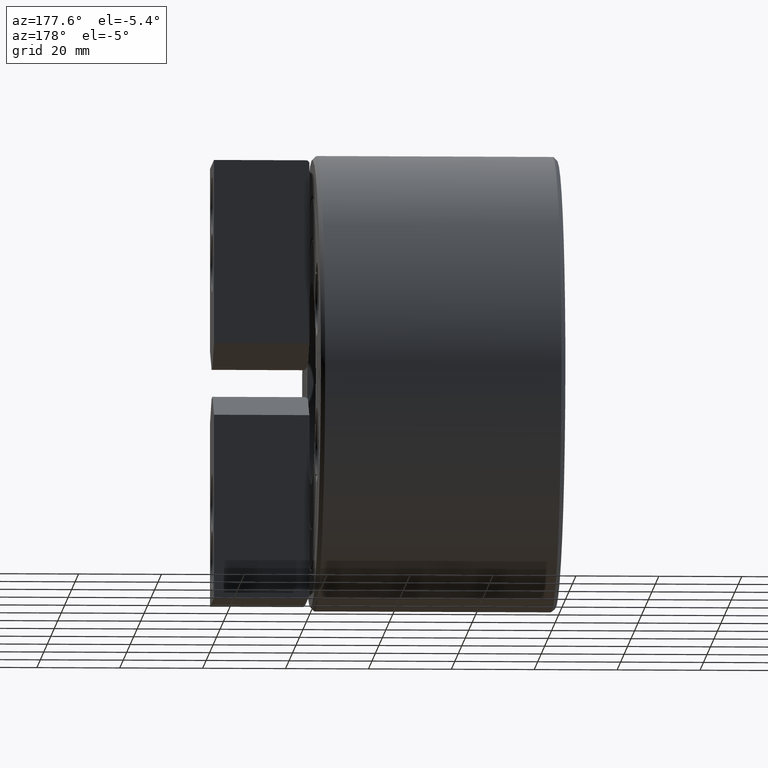
[diagram: clean part render]
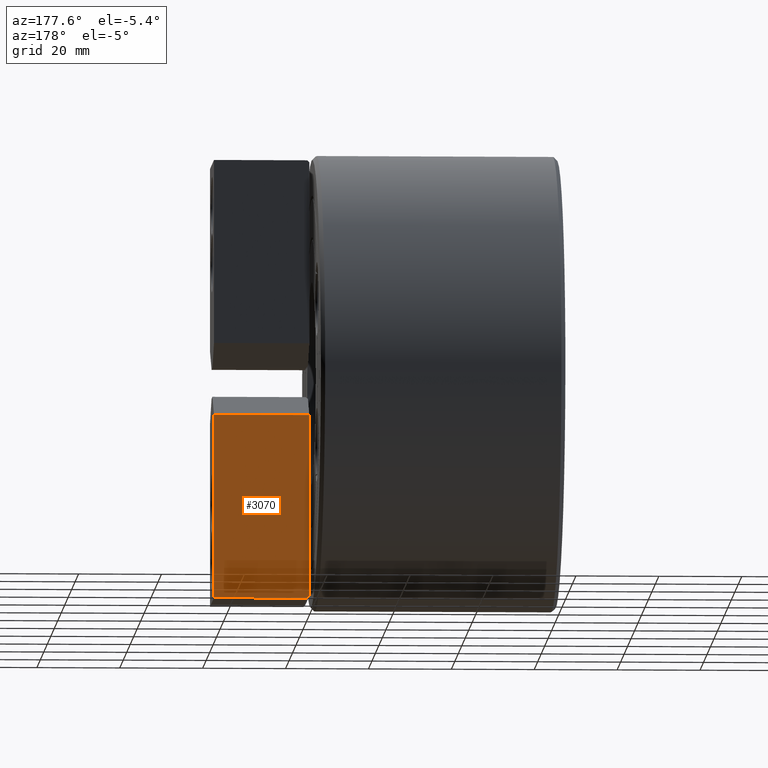
[diagram: same view with one face highlighted and labeled with its STEP entity id]
A machine part, auxiliary view. The second image highlights one B-rep face of the part: STEP entity #3070.
In plain terms, the highlighted planar face has unit normal (0, 1, -0).
Its self-contained STEP definition (entity closure, byte-faithful):
#98=LINE('',#5568,#351);
#107=LINE('',#5588,#360);
#110=LINE('',#5594,#363);
#113=LINE('',#5599,#366);
#117=LINE('',#5608,#370);
#351=VECTOR('',#4702,1000.);
#360=VECTOR('',#4715,1000.);
#363=VECTOR('',#4720,1000.);
#366=VECTOR('',#4725,1000.);
#370=VECTOR('',#4737,1000.);
#641=PLANE('',#4377);
#798=ORIENTED_EDGE('',*,*,#1632,.F.);
#799=ORIENTED_EDGE('',*,*,#1647,.F.);
#800=ORIENTED_EDGE('',*,*,#1644,.F.);
#801=ORIENTED_EDGE('',*,*,#1641,.F.);
#802=ORIENTED_EDGE('',*,*,#1652,.F.);
#1632=EDGE_CURVE('',#2071,#2072,#98,.T.);
#1641=EDGE_CURVE('',#2080,#2081,#107,.T.);
#1644=EDGE_CURVE('',#2081,#2083,#110,.T.);
#1647=EDGE_CURVE('',#2083,#2071,#113,.T.);
#1652=EDGE_CURVE('',#2072,#2080,#117,.T.);
#2071=VERTEX_POINT('',#5567);
#2072=VERTEX_POINT('',#5569);
#2080=VERTEX_POINT('',#5587);
#2081=VERTEX_POINT('',#5589);
#2083=VERTEX_POINT('',#5595);
#2522=EDGE_LOOP('',(#798,#799,#800,#801,#802));
#2779=FACE_BOUND('',#2522,.T.);
#3070=ADVANCED_FACE('',(#2779),#641,.T.);
#4377=AXIS2_PLACEMENT_3D('',#5610,#4739,#4740);
#4702=DIRECTION('',(-1.,-1.57214084700305E-48,-2.56758564431078E-32));
#4715=DIRECTION('',(0.707106781186547,-8.65927457071936E-17,-0.707106781186548));
#4720=DIRECTION('',(1.,1.57214084700305E-48,2.56758564431078E-32));
#4725=DIRECTION('',(-2.56758564431078E-32,1.22460635382238E-16,1.));
#4737=DIRECTION('',(2.56758564431078E-32,-1.22460635382238E-16,-1.));
#4739=DIRECTION('',(1.57214084700305E-48,1.,-1.22460635382238E-16));
#4740=DIRECTION('',(-2.56758564431078E-32,1.22460635382238E-16,1.));
#5567=CARTESIAN_POINT('',(22.7737654320987,11.5,-8.69615274892559));
#5568=CARTESIAN_POINT('',(-24.4762345679013,11.5,-8.69615274892559));
#5569=CARTESIAN_POINT('',(-0.226234567901239,11.5,-8.69615274892559));
#5587=CARTESIAN_POINT('',(-0.226234567901245,11.5,-52.5));
#5588=CARTESIAN_POINT('',(-0.226234567901245,11.5,-52.5));
#5589=CARTESIAN_POINT('',(0.273765432098754,11.5,-53.));
#5594=CARTESIAN_POINT('',(0.273765432098754,11.5,-53.));
#5595=CARTESIAN_POINT('',(22.7737654320987,11.5,-53.));
#5599=CARTESIAN_POINT('',(22.7737654320987,11.5,-53.));
#5608=CARTESIAN_POINT('',(-0.226234567901245,11.5,-4.));
#5610=CARTESIAN_POINT('',(-24.4762345679013,11.5,-28.25));